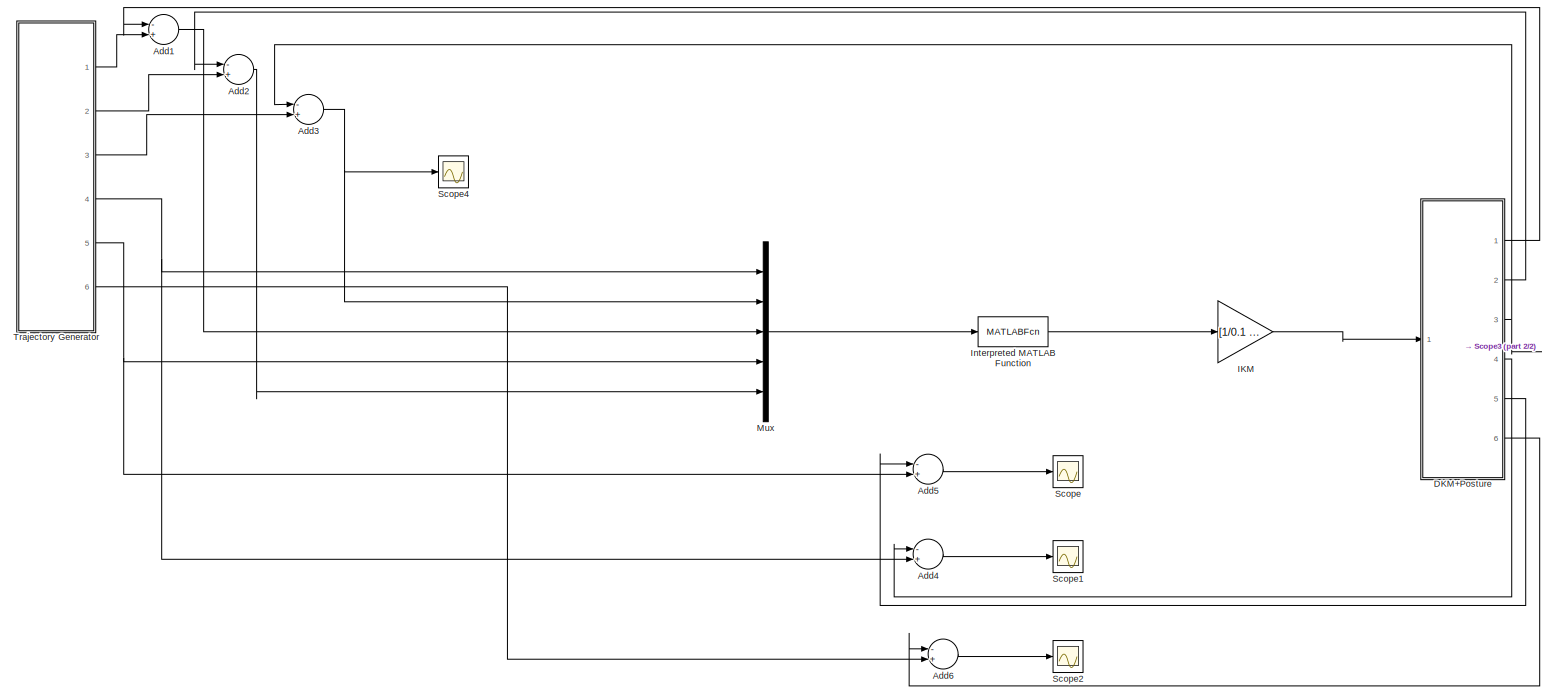
[diagram: root canvas - part 1/2, most of the canvas]
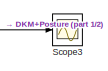
[diagram: root canvas - part 2/2, middle right region]
MODEL slx_9fbfb99f886d
KIND model
CONFIG AbsTol = auto
CONFIG FixedStep = 0.1
CONFIG MaxStep = auto
CONFIG MinStep = auto
CONFIG RelTol = 1e-3
CONFIG SampleTimeConstraint = Unconstrained
CONFIG Solver = ode3
CONFIG SolverMode = Auto
CONFIG SolverName = ode3
CONFIG StartTime = 0.0
CONFIG StopTime = 100
BLOCK [Sum] Add1
  InputSameDT = off
  Inputs = -+
  OutDataTypeStr = Inherit: Inherit via internal rule
  Ports = [2, 1]
  SaturateOnIntegerOverflow = off
BLOCK [Sum] Add2
  InputSameDT = off
  Inputs = -+
  OutDataTypeStr = Inherit: Inherit via internal rule
  Ports = [2, 1]
  SaturateOnIntegerOverflow = off
BLOCK [Sum] Add3
  InputSameDT = off
  Inputs = -+
  OutDataTypeStr = Inherit: Inherit via internal rule
  Ports = [2, 1]
  SaturateOnIntegerOverflow = off
BLOCK [Sum] Add4
  InputSameDT = off
  Inputs = -+
  OutDataTypeStr = Inherit: Inherit via internal rule
  Ports = [2, 1]
  SaturateOnIntegerOverflow = off
BLOCK [Sum] Add5
  InputSameDT = off
  Inputs = -+
  OutDataTypeStr = Inherit: Inherit via internal rule
  Ports = [2, 1]
  SaturateOnIntegerOverflow = off
BLOCK [Sum] Add6
  InputSameDT = off
  Inputs = -+
  OutDataTypeStr = Inherit: Inherit via internal rule
  Ports = [2, 1]
  SaturateOnIntegerOverflow = off
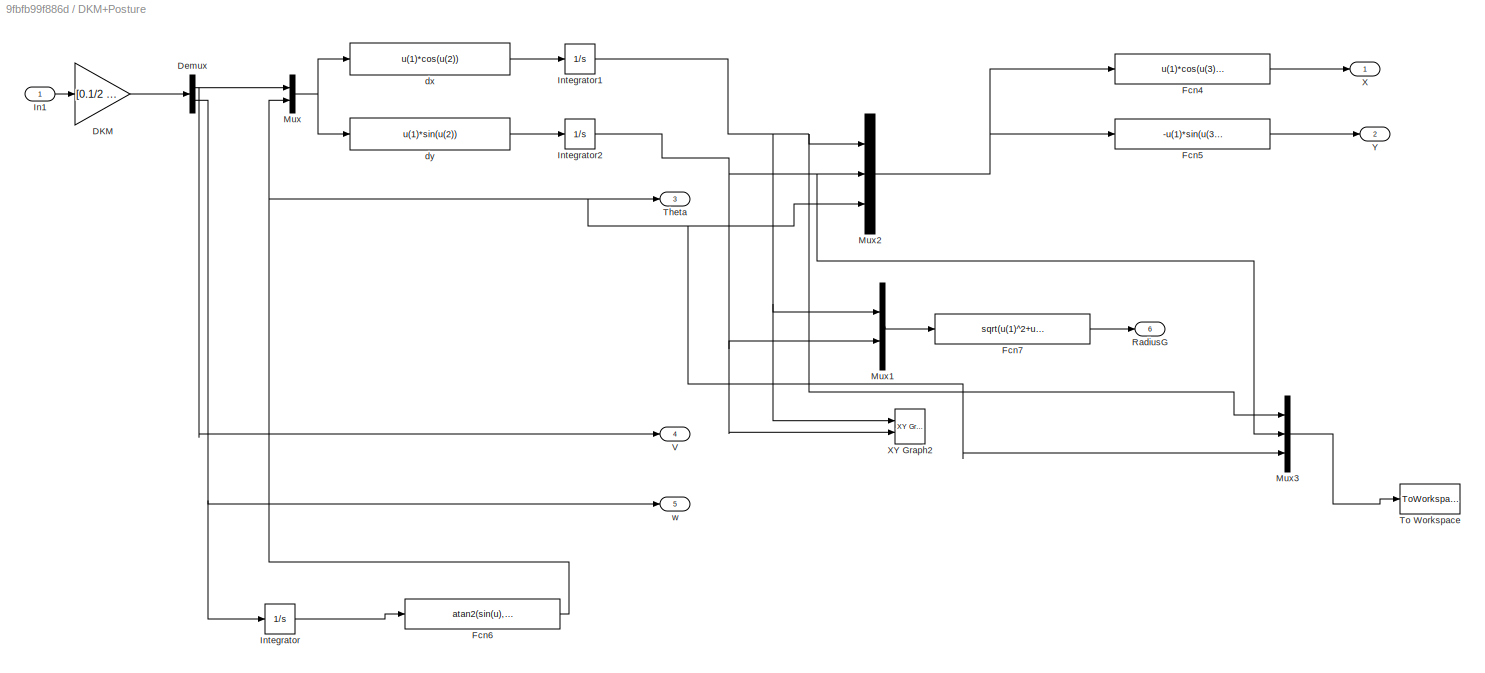
BLOCK [SubSystem] DKM+Posture
  Ports = [1, 6]
  RequestExecContextInheritance = off
BLOCK [Gain] DKM+Posture/DKM
  Gain = [0.1/2 0.1/2;0.1/2.6 -0.1/2.6]
  Multiplication = Matrix(K*u)
  OutDataTypeStr = Inherit: Inherit via internal rule
  ParamDataTypeStr = Inherit: Inherit via internal rule
  SaturateOnIntegerOverflow = off
BLOCK [Demux] DKM+Posture/Demux
  DisplayOption = bar
  Outputs = 2
  Ports = [1, 2]
BLOCK [Fcn] DKM+Posture/Fcn4
  Expr = u(1)*cos(u(3))+u(2)*sin(u(3))
BLOCK [Fcn] DKM+Posture/Fcn5
  Expr = -u(1)*sin(u(3))+u(2)*cos(u(3))
BLOCK [Fcn] DKM+Posture/Fcn6
  Expr = atan2(sin(u),cos(u))
BLOCK [Fcn] DKM+Posture/Fcn7
  Expr = sqrt(u(1)^2+u(2)^2)
BLOCK [Inport] DKM+Posture/In1
  IconDisplay = Port number
BLOCK [Integrator] DKM+Posture/Integrator
  InitialCondition = pi
  Ports = [1, 1]
BLOCK [Integrator] DKM+Posture/Integrator1
  InitialCondition = 2.3
  Ports = [1, 1]
BLOCK [Integrator] DKM+Posture/Integrator2
  Ports = [1, 1]
BLOCK [Mux] DKM+Posture/Mux
  DisplayOption = bar
  Inputs = 2
  Ports = [2, 1]
BLOCK [Mux] DKM+Posture/Mux1
  DisplayOption = bar
  Inputs = 2
  Ports = [2, 1]
BLOCK [Mux] DKM+Posture/Mux2
  DisplayOption = bar
  Inputs = 3
  Ports = [3, 1]
BLOCK [Mux] DKM+Posture/Mux3
  DisplayOption = bar
  Inputs = 3
  Ports = [3, 1]
BLOCK [Outport] DKM+Posture/RadiusG
  IconDisplay = Port number
  Port = 6
BLOCK [Outport] DKM+Posture/Theta
  IconDisplay = Port number
  Port = 3
BLOCK [ToWorkspace] DKM+Posture/To Workspace
  FixptAsFi = on
  MaxDataPoints = inf
  Ports = [1]
  SampleTime = -1
  Save2DSignal = 3-D array (concatenate along third dimension)
  VariableName = output
BLOCK [Outport] DKM+Posture/V
  IconDisplay = Port number
  Port = 4
BLOCK [Outport] DKM+Posture/X
  IconDisplay = Port number
BLOCK [Reference] DKM+Posture/XY Graph2  REF=simulink/Sinks/XY Graph
  Ports = [2]
  SourceBlock = simulink/Sinks/XY Graph
  SourceType = XY scope.
  st = -1
  xmax = 2
  xmin = -2
  ymax = 2
  ymin = -2
BLOCK [Outport] DKM+Posture/Y
  IconDisplay = Port number
  Port = 2
BLOCK [Fcn] DKM+Posture/dx
  Expr = u(1)*cos(u(2))
BLOCK [Fcn] DKM+Posture/dy
  Expr = u(1)*sin(u(2))
BLOCK [Outport] DKM+Posture/w
  IconDisplay = Port number
  Port = 5
BLOCK [Gain] IKM
  Gain = [1/0.1 1.3/0.1;1/0.1 -1.3/0.1]
  Multiplication = Matrix(K*u)
  OutDataTypeStr = Inherit: Inherit via internal rule
  ParamDataTypeStr = Inherit: Inherit via internal rule
  SaturateOnIntegerOverflow = off
BLOCK [MATLABFcn] Interpreted MATLAB Function
  MATLABFcn = lypo(u)
  OutputDimensions = 2
  Ports = [1, 1]
BLOCK [Mux] Mux
  DisplayOption = bar
  Inputs = 5
  Ports = [5, 1]
BLOCK [Scope] Scope
  DataFormat = StructureWithTime
  Floating = off
  LimitDataPoints = off
  NumInputPorts = 1
  Ports = [1]
  YMax = 0.07617
  YMin = -0.07896
BLOCK [Scope] Scope1
  DataFormat = StructureWithTime
  Floating = off
  LimitDataPoints = off
  NumInputPorts = 1
  Ports = [1]
  SaveName = ScopeData1
  YMax = 1.33134
  YMin = -2.70348
BLOCK [Scope] Scope2
  DataFormat = StructureWithTime
  Floating = off
  LimitDataPoints = off
  NumInputPorts = 1
  Ports = [1]
  SaveName = ScopeData2
  YMax = 1.68833
  YMin = -0.52093
BLOCK [Scope] Scope3
  DataFormat = StructureWithTime
  Floating = off
  LimitDataPoints = off
  NumInputPorts = 1
  Ports = [1]
  SaveName = ScopeData3
  YMax = 0.07617
  YMin = -0.07896
BLOCK [Scope] Scope4
  DataFormat = StructureWithTime
  Floating = off
  LimitDataPoints = off
  NumInputPorts = 1
  Ports = [1]
  SaveName = ScopeData4
  YMax = 0.07617
  YMin = -0.07896
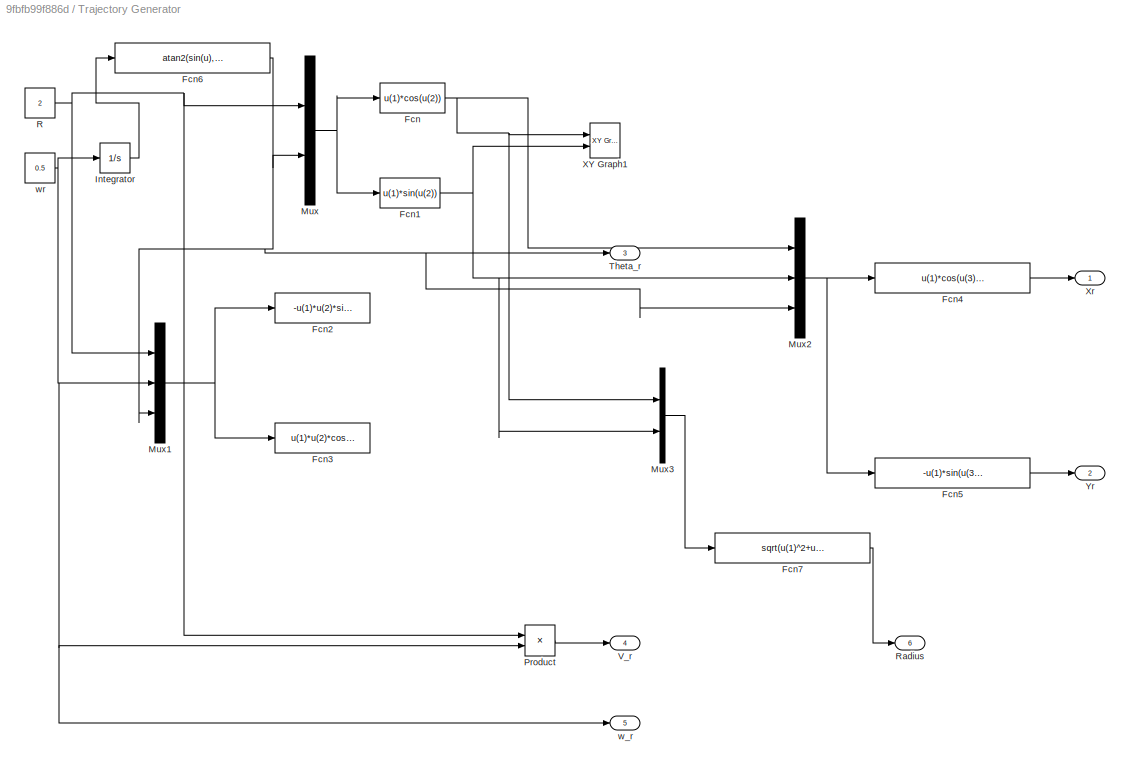
BLOCK [SubSystem] Trajectory Generator
  Ports = [0, 6]
  RequestExecContextInheritance = off
BLOCK [Fcn] Trajectory Generator/Fcn
  Expr = u(1)*cos(u(2))
BLOCK [Fcn] Trajectory Generator/Fcn1
  Expr = u(1)*sin(u(2))
BLOCK [Fcn] Trajectory Generator/Fcn2
  Expr = -u(1)*u(2)*sin(u(3))
BLOCK [Fcn] Trajectory Generator/Fcn3
  Expr = u(1)*u(2)*cos(u(3))
BLOCK [Fcn] Trajectory Generator/Fcn4
  Expr = u(1)*cos(u(3))+u(2)*sin(u(3))
BLOCK [Fcn] Trajectory Generator/Fcn5
  Expr = -u(1)*sin(u(3))+u(2)*cos(u(3))
BLOCK [Fcn] Trajectory Generator/Fcn6
  Expr = atan2(sin(u),cos(u))
BLOCK [Fcn] Trajectory Generator/Fcn7
  Expr = sqrt(u(1)^2+u(2)^2)
BLOCK [Integrator] Trajectory Generator/Integrator
  Ports = [1, 1]
BLOCK [Mux] Trajectory Generator/Mux
  DisplayOption = bar
  Inputs = 2
  Ports = [2, 1]
BLOCK [Mux] Trajectory Generator/Mux1
  DisplayOption = bar
  Inputs = 3
  Ports = [3, 1]
BLOCK [Mux] Trajectory Generator/Mux2
  DisplayOption = bar
  Inputs = 3
  Ports = [3, 1]
BLOCK [Mux] Trajectory Generator/Mux3
  DisplayOption = bar
  Inputs = 2
  Ports = [2, 1]
BLOCK [Product] Trajectory Generator/Product
  InputSameDT = off
  OutDataTypeStr = Inherit: Inherit via internal rule
  Ports = [2, 1]
  RndMeth = Floor
  SaturateOnIntegerOverflow = off
BLOCK [Constant] Trajectory Generator/R
  Value = 2
BLOCK [Outport] Trajectory Generator/Radius
  IconDisplay = Port number
  Port = 6
BLOCK [Outport] Trajectory Generator/Theta_r
  IconDisplay = Port number
  Port = 3
BLOCK [Outport] Trajectory Generator/V_r
  IconDisplay = Port number
  Port = 4
BLOCK [Reference] Trajectory Generator/XY Graph1  REF=simulink/Sinks/XY Graph
  Ports = [2]
  SourceBlock = simulink/Sinks/XY Graph
  SourceType = XY scope.
  st = -1
  xmax = 2
  xmin = -2
  ymax = 2
  ymin = -2
BLOCK [Outport] Trajectory Generator/Xr
  IconDisplay = Port number
BLOCK [Outport] Trajectory Generator/Yr
  IconDisplay = Port number
  Port = 2
BLOCK [Outport] Trajectory Generator/w_r
  IconDisplay = Port number
  Port = 5
BLOCK [Constant] Trajectory Generator/wr
  Value = 0.5
LINE Add1:1 -> Mux:3
LINE Add2:1 -> Mux:5
NET Add3:1 -> Mux:2, Scope4:1
LINE Add4:1 -> Scope1:1
LINE Add5:1 -> Scope:1
LINE Add6:1 -> Scope2:1
LINE DKM+Posture/DKM:1 -> DKM+Posture/Demux:1
NET DKM+Posture/Demux:1 -> DKM+Posture/Mux:1, DKM+Posture/V:1
NET DKM+Posture/Demux:2 -> DKM+Posture/Integrator:1, DKM+Posture/w:1
LINE DKM+Posture/Fcn4:1 -> DKM+Posture/X:1
LINE DKM+Posture/Fcn5:1 -> DKM+Posture/Y:1
NET DKM+Posture/Fcn6:1 -> DKM+Posture/Mux2:3, DKM+Posture/Mux3:3, DKM+Posture/Mux:2, DKM+Posture/Theta:1
LINE DKM+Posture/Fcn7:1 -> DKM+Posture/RadiusG:1
LINE DKM+Posture/In1:1 -> DKM+Posture/DKM:1
NET DKM+Posture/Integrator1:1 -> DKM+Posture/Mux1:1, DKM+Posture/Mux2:1, DKM+Posture/Mux3:1, DKM+Posture/XY Graph2:1
NET DKM+Posture/Integrator2:1 -> DKM+Posture/Mux1:2, DKM+Posture/Mux2:2, DKM+Posture/Mux3:2, DKM+Posture/XY Graph2:2
LINE DKM+Posture/Integrator:1 -> DKM+Posture/Fcn6:1
LINE DKM+Posture/Mux1:1 -> DKM+Posture/Fcn7:1
NET DKM+Posture/Mux2:1 -> DKM+Posture/Fcn4:1, DKM+Posture/Fcn5:1
LINE DKM+Posture/Mux3:1 -> DKM+Posture/To Workspace:1
NET DKM+Posture/Mux:1 -> DKM+Posture/dx:1, DKM+Posture/dy:1
LINE DKM+Posture/dx:1 -> DKM+Posture/Integrator1:1
LINE DKM+Posture/dy:1 -> DKM+Posture/Integrator2:1
LINE DKM+Posture:1 -> Add1:1
LINE DKM+Posture:2 -> Add2:1
NET DKM+Posture:3 -> Add3:1, Scope3:1
LINE DKM+Posture:4 -> Add4:1
LINE DKM+Posture:5 -> Add5:1
LINE DKM+Posture:6 -> Add6:1
LINE IKM:1 -> DKM+Posture:1
LINE Interpreted MATLAB Function:1 -> IKM:1
LINE Mux:1 -> Interpreted MATLAB Function:1
NET Trajectory Generator/Fcn1:1 -> Trajectory Generator/Mux2:2, Trajectory Generator/Mux3:2, Trajectory Generator/XY Graph1:2
LINE Trajectory Generator/Fcn4:1 -> Trajectory Generator/Xr:1
LINE Trajectory Generator/Fcn5:1 -> Trajectory Generator/Yr:1
NET Trajectory Generator/Fcn6:1 -> Trajectory Generator/Mux1:3, Trajectory Generator/Mux2:3, Trajectory Generator/Mux:2, Trajectory Generator/Theta_r:1
LINE Trajectory Generator/Fcn7:1 -> Trajectory Generator/Radius:1
NET Trajectory Generator/Fcn:1 -> Trajectory Generator/Mux2:1, Trajectory Generator/Mux3:1, Trajectory Generator/XY Graph1:1
LINE Trajectory Generator/Integrator:1 -> Trajectory Generator/Fcn6:1
NET Trajectory Generator/Mux1:1 -> Trajectory Generator/Fcn2:1, Trajectory Generator/Fcn3:1
NET Trajectory Generator/Mux2:1 -> Trajectory Generator/Fcn4:1, Trajectory Generator/Fcn5:1
LINE Trajectory Generator/Mux3:1 -> Trajectory Generator/Fcn7:1
NET Trajectory Generator/Mux:1 -> Trajectory Generator/Fcn1:1, Trajectory Generator/Fcn:1
LINE Trajectory Generator/Product:1 -> Trajectory Generator/V_r:1
NET Trajectory Generator/R:1 -> Trajectory Generator/Mux1:1, Trajectory Generator/Mux:1, Trajectory Generator/Product:1
NET Trajectory Generator/wr:1 -> Trajectory Generator/Integrator:1, Trajectory Generator/Mux1:2, Trajectory Generator/Product:2, Trajectory Generator/w_r:1
LINE Trajectory Generator:1 -> Add1:2
LINE Trajectory Generator:2 -> Add2:2
LINE Trajectory Generator:3 -> Add3:2
NET Trajectory Generator:4 -> Add4:2, Mux:1
NET Trajectory Generator:5 -> Add5:2, Mux:4
LINE Trajectory Generator:6 -> Add6:2
note: NET lines group one-source signal fan-out (src -> all destinations, sorted); 1:1 wires keep LINE
